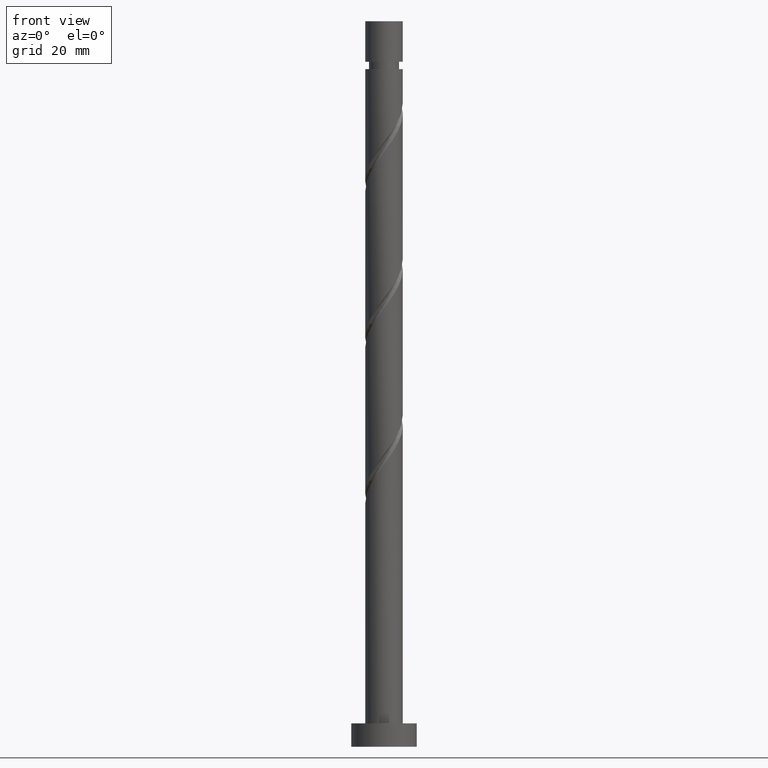
[diagram: clean part render]
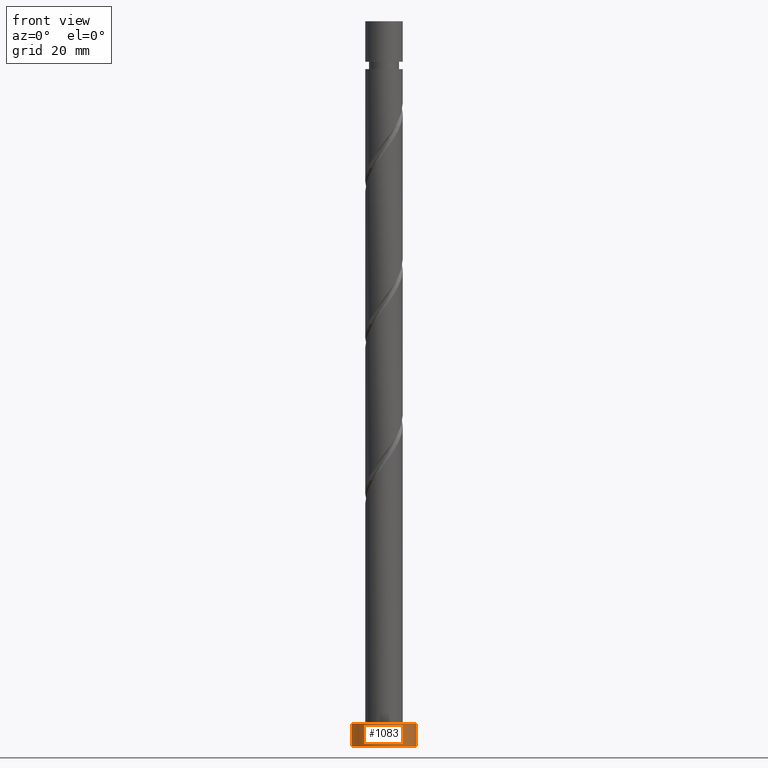
[diagram: same view with one face highlighted and labeled with its STEP entity id]
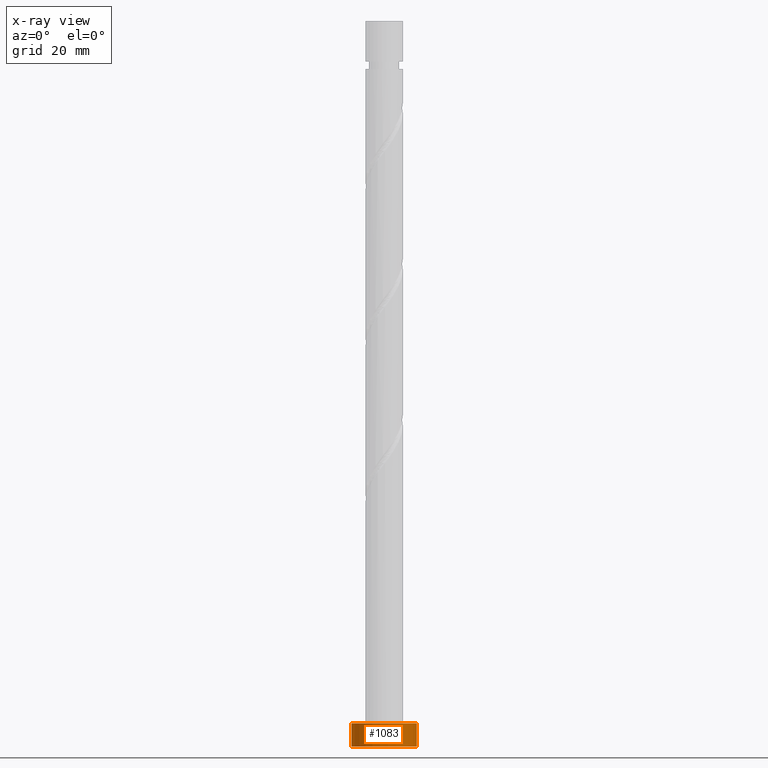
[diagram: x-ray of the same camera — body ghosted, the highlighted face saturated]
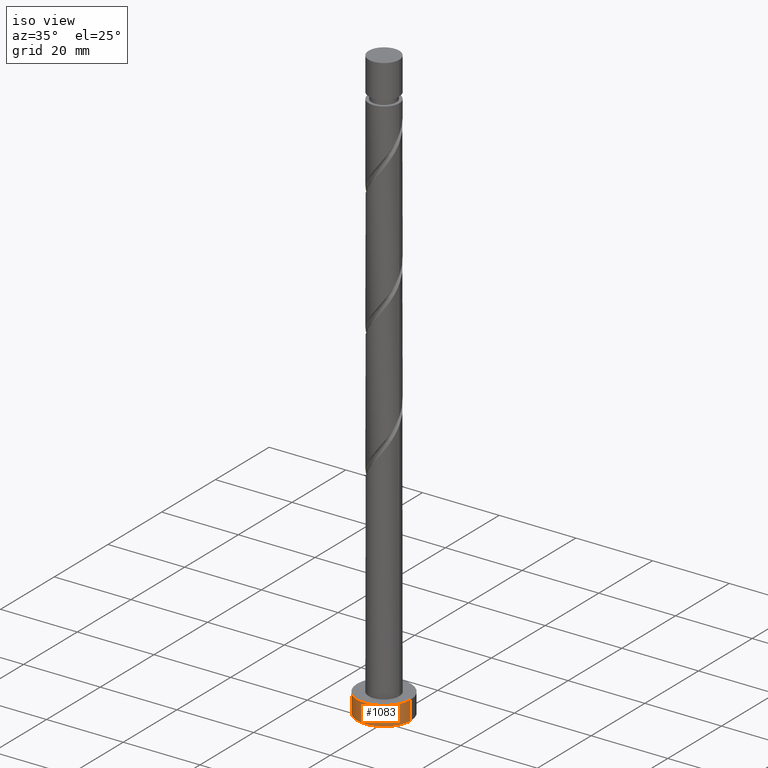
[diagram: same view with one face highlighted and labeled with its STEP entity id]
A machine part, front view. The second image highlights one B-rep face of the part: STEP entity #1083.
The next image is the same camera in x-ray: the body ghosted, the highlighted face saturated — about 0% of this face is hidden behind the body in this view.
A second angle (iso view) of the same face is appended — the face is thin or edge-on in the first view.
In plain terms, the highlighted cylindrical surface (edge-blend (fillet) strip) has radius 7 mm, axis along (-0, -0, -1).
Its self-contained STEP definition (entity closure, byte-faithful):
#48 = CARTESIAN_POINT ( 'NONE',  ( 7.000000000000000000, 8.572527594031473190E-16, 5.000000000000000000 ) ) ;
#55 = CARTESIAN_POINT ( 'NONE',  ( 7.000000000000000000, 8.572527594031473190E-16, 5.000000000000000000 ) ) ;
#126 = LINE ( 'NONE', #1486, #977 ) ;
#155 = FACE_OUTER_BOUND ( 'NONE', #482, .T. ) ;
#269 = DIRECTION ( 'NONE',  ( -0.000000000000000000, -0.000000000000000000, -1.000000000000000000 ) ) ;
#325 = CARTESIAN_POINT ( 'NONE',  ( 0.000000000000000000, 0.000000000000000000, 0.000000000000000000 ) ) ;
#353 = DIRECTION ( 'NONE',  ( 0.000000000000000000, 0.000000000000000000, 1.000000000000000000 ) ) ;
#359 = CIRCLE ( 'NONE', #694, 7.000000000000000000 ) ;
#416 = VECTOR ( 'NONE', #1392, 1000.000000000000000 ) ;
#456 = EDGE_CURVE ( 'NONE', #607, #1382, #359, .T. ) ;
#482 = EDGE_LOOP ( 'NONE', ( #1430, #1297, #1354, #1317 ) ) ;
#486 = CARTESIAN_POINT ( 'NONE',  ( 0.000000000000000000, 0.000000000000000000, 5.000000000000000000 ) ) ;
#528 = EDGE_CURVE ( 'NONE', #729, #1382, #600, .T. ) ;
#600 = LINE ( 'NONE', #55, #416 ) ;
#607 = VERTEX_POINT ( 'NONE', #1010 ) ;
#640 = AXIS2_PLACEMENT_3D ( 'NONE', #486, #353, #1276 ) ;
#662 = CARTESIAN_POINT ( 'NONE',  ( 7.000000000000000000, 8.572527594031473190E-16, 0.000000000000000000 ) ) ;
#668 = CIRCLE ( 'NONE', #640, 7.000000000000000000 ) ;
#694 = AXIS2_PLACEMENT_3D ( 'NONE', #325, #707, #869 ) ;
#707 = DIRECTION ( 'NONE',  ( 0.000000000000000000, 0.000000000000000000, 1.000000000000000000 ) ) ;
#729 = VERTEX_POINT ( 'NONE', #48 ) ;
#733 = CARTESIAN_POINT ( 'NONE',  ( 0.000000000000000000, 0.000000000000000000, 5.000000000000000000 ) ) ;
#803 = CARTESIAN_POINT ( 'NONE',  ( -7.000000000000000000, 0.000000000000000000, 5.000000000000000000 ) ) ;
#817 = CYLINDRICAL_SURFACE ( 'NONE', #1069, 7.000000000000000000 ) ;
#869 = DIRECTION ( 'NONE',  ( 1.000000000000000000, 0.000000000000000000, 0.000000000000000000 ) ) ;
#876 = DIRECTION ( 'NONE',  ( -1.000000000000000000, 0.000000000000000000, 0.000000000000000000 ) ) ;
#977 = VECTOR ( 'NONE', #269, 1000.000000000000000 ) ;
#1010 = CARTESIAN_POINT ( 'NONE',  ( -7.000000000000000000, 0.000000000000000000, 0.000000000000000000 ) ) ;
#1069 = AXIS2_PLACEMENT_3D ( 'NONE', #733, #1564, #876 ) ;
#1083 = ADVANCED_FACE ( 'NONE', ( #155 ), #817, .T. ) ;
#1113 = EDGE_CURVE ( 'NONE', #1241, #729, #668, .T. ) ;
#1241 = VERTEX_POINT ( 'NONE', #803 ) ;
#1276 = DIRECTION ( 'NONE',  ( 1.000000000000000000, 0.000000000000000000, 0.000000000000000000 ) ) ;
#1297 = ORIENTED_EDGE ( 'NONE', *, *, #1113, .F. ) ;
#1317 = ORIENTED_EDGE ( 'NONE', *, *, #456, .T. ) ;
#1354 = ORIENTED_EDGE ( 'NONE', *, *, #1402, .T. ) ;
#1382 = VERTEX_POINT ( 'NONE', #662 ) ;
#1392 = DIRECTION ( 'NONE',  ( -0.000000000000000000, -0.000000000000000000, -1.000000000000000000 ) ) ;
#1402 = EDGE_CURVE ( 'NONE', #1241, #607, #126, .T. ) ;
#1430 = ORIENTED_EDGE ( 'NONE', *, *, #528, .F. ) ;
#1486 = CARTESIAN_POINT ( 'NONE',  ( -7.000000000000000000, 0.000000000000000000, 5.000000000000000000 ) ) ;
#1564 = DIRECTION ( 'NONE',  ( -0.000000000000000000, -0.000000000000000000, -1.000000000000000000 ) ) ;